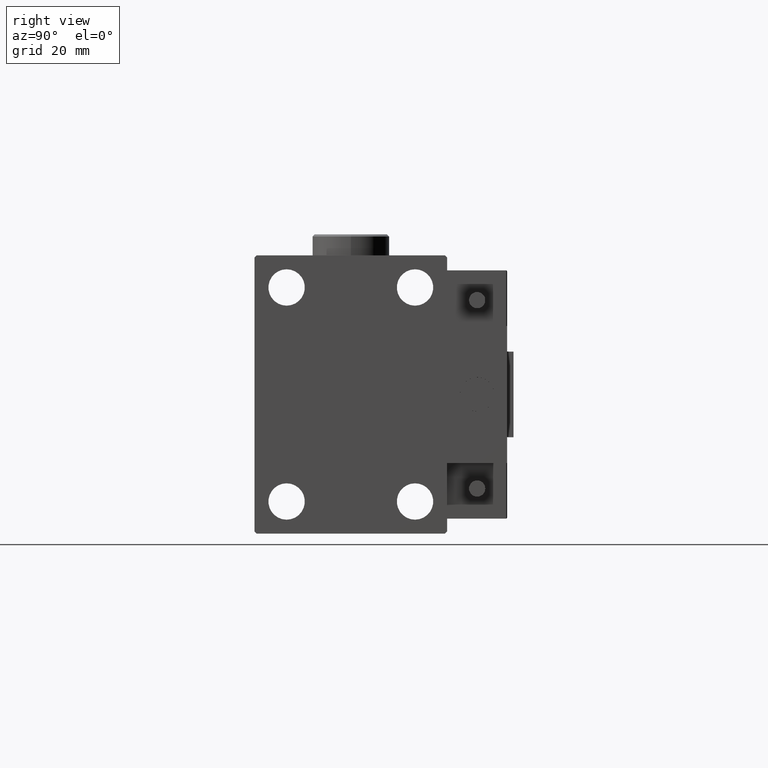
[diagram: clean part render]
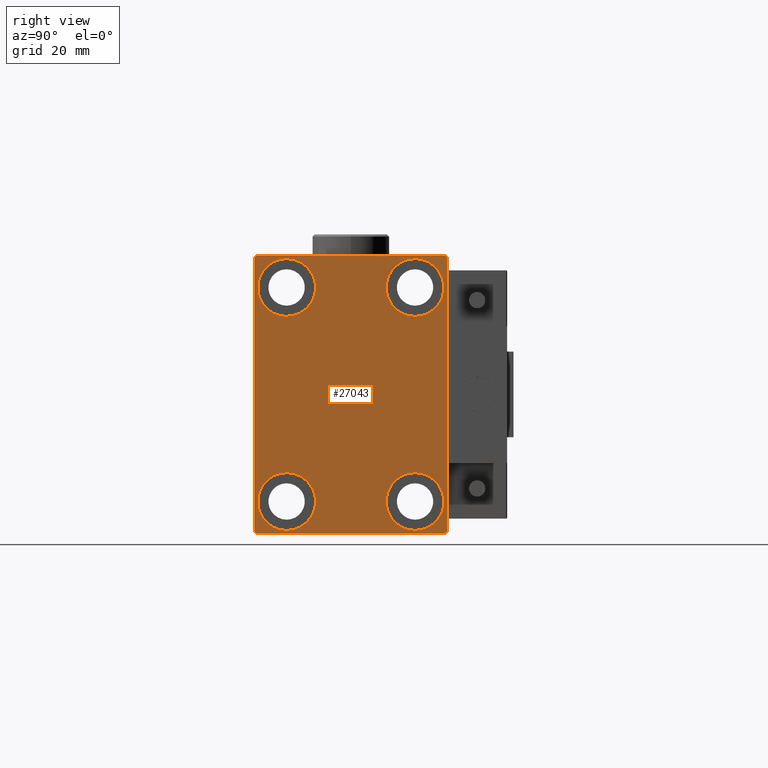
[diagram: same view with one face highlighted and labeled with its STEP entity id]
A machine part, right view. The second image highlights one B-rep face of the part: STEP entity #27043.
In plain terms, the highlighted planar face has unit normal (1, 0, 0).
Its self-contained STEP definition (entity closure, byte-faithful):
#483 = EDGE_CURVE ( 'NONE', #17148, #46121, #27970, .T. ) ;
#508 = DIRECTION ( 'NONE',  ( 0.000000000000000000, 0.000000000000000000, 1.000000000000000000 ) ) ;
#632 = DIRECTION ( 'NONE',  ( 0.000000000000000000, 0.000000000000000000, 1.000000000000000000 ) ) ;
#1006 = EDGE_CURVE ( 'NONE', #1190, #26991, #35159, .T. ) ;
#1021 = CARTESIAN_POINT ( 'NONE',  ( 70.00000000000000000, 22.49999999999999289, 31.99999999999999289 ) ) ;
#1190 = VERTEX_POINT ( 'NONE', #18166 ) ;
#1398 = DIRECTION ( 'NONE',  ( -1.000000000000000000, -0.000000000000000000, -0.000000000000000000 ) ) ;
#2319 = VECTOR ( 'NONE', #29172, 1000.000000000000000 ) ;
#2994 = CARTESIAN_POINT ( 'NONE',  ( 70.00000000000000000, -22.50000000000000711, -32.00000000000000711 ) ) ;
#2997 = AXIS2_PLACEMENT_3D ( 'NONE', #5308, #1398, #48322 ) ;
#3330 = EDGE_CURVE ( 'NONE', #29030, #23129, #13100, .T. ) ;
#3571 = EDGE_CURVE ( 'NONE', #50985, #24622, #32628, .T. ) ;
#4364 = ORIENTED_EDGE ( 'NONE', *, *, #32429, .T. ) ;
#4567 = LINE ( 'NONE', #8982, #32850 ) ;
#4830 = DIRECTION ( 'NONE',  ( -0.000000000000000000, 0.7071067811865376918, 0.7071067811865573427 ) ) ;
#4844 = EDGE_CURVE ( 'NONE', #20922, #1190, #17184, .T. ) ;
#5272 = DIRECTION ( 'NONE',  ( 0.000000000000000000, 1.000000000000000000, 0.000000000000000000 ) ) ;
#5308 = CARTESIAN_POINT ( 'NONE',  ( 70.00000000000000000, 15.00000000000000355, 25.00000000000000000 ) ) ;
#6096 = DIRECTION ( 'NONE',  ( -1.000000000000000000, -0.000000000000000000, -0.000000000000000000 ) ) ;
#6140 = VERTEX_POINT ( 'NONE', #33378 ) ;
#6747 = VERTEX_POINT ( 'NONE', #30849 ) ;
#6918 = CARTESIAN_POINT ( 'NONE',  ( 70.00000000000000000, 22.00000000000001421, -32.50000000000000711 ) ) ;
#7990 = CARTESIAN_POINT ( 'NONE',  ( 70.00000000000000000, -15.00000000000000355, -18.25000000000000355 ) ) ;
#8084 = PLANE ( 'NONE',  #21276 ) ;
#8982 = CARTESIAN_POINT ( 'NONE',  ( 70.00000000000000000, 27.25000000000032685, -27.24999999999957012 ) ) ;
#9323 = ORIENTED_EDGE ( 'NONE', *, *, #48474, .T. ) ;
#9497 = ORIENTED_EDGE ( 'NONE', *, *, #31169, .T. ) ;
#11216 = FACE_BOUND ( 'NONE', #45356, .T. ) ;
#11710 = DIRECTION ( 'NONE',  ( 0.000000000000000000, 0.000000000000000000, -1.000000000000000000 ) ) ;
#12244 = FACE_OUTER_BOUND ( 'NONE', #15050, .T. ) ;
#12576 = DIRECTION ( 'NONE',  ( 0.000000000000000000, -1.067522139062650425E-16, 1.000000000000000000 ) ) ;
#12699 = ORIENTED_EDGE ( 'NONE', *, *, #46190, .T. ) ;
#13100 = CIRCLE ( 'NONE', #32252, 6.749999999999999112 ) ;
#13746 = ORIENTED_EDGE ( 'NONE', *, *, #24718, .T. ) ;
#14526 = CARTESIAN_POINT ( 'NONE',  ( 70.00000000000000000, -22.00000000000002132, -32.50000000000000711 ) ) ;
#14775 = ORIENTED_EDGE ( 'NONE', *, *, #40215, .T. ) ;
#15050 = EDGE_LOOP ( 'NONE', ( #51274, #30069, #9323, #4364, #30209, #13746, #15087, #28827 ) ) ;
#15087 = ORIENTED_EDGE ( 'NONE', *, *, #35472, .T. ) ;
#15368 = DIRECTION ( 'NONE',  ( 0.000000000000000000, 0.000000000000000000, -1.000000000000000000 ) ) ;
#15583 = DIRECTION ( 'NONE',  ( -1.000000000000000000, -0.000000000000000000, -0.000000000000000000 ) ) ;
#16248 = VECTOR ( 'NONE', #11710, 1000.000000000000000 ) ;
#17014 = VERTEX_POINT ( 'NONE', #23874 ) ;
#17125 = ORIENTED_EDGE ( 'NONE', *, *, #43408, .T. ) ;
#17148 = VERTEX_POINT ( 'NONE', #24659 ) ;
#17184 = LINE ( 'NONE', #45338, #2319 ) ;
#17367 = LINE ( 'NONE', #20758, #39639 ) ;
#17751 = CIRCLE ( 'NONE', #36058, 6.749999999999999112 ) ;
#18133 = CARTESIAN_POINT ( 'NONE',  ( 70.00000000000000000, 22.50000000000000000, -32.00000000000002132 ) ) ;
#18166 = CARTESIAN_POINT ( 'NONE',  ( 70.00000000000000000, -21.99999999999999289, 32.49999999999999289 ) ) ;
#18292 = ORIENTED_EDGE ( 'NONE', *, *, #24916, .T. ) ;
#20229 = EDGE_LOOP ( 'NONE', ( #12699, #34589 ) ) ;
#20272 = CARTESIAN_POINT ( 'NONE',  ( 70.00000000000000000, 15.00000000000000355, 25.00000000000000000 ) ) ;
#20758 = CARTESIAN_POINT ( 'NONE',  ( 70.00000000000000000, -27.25000000000032330, -27.24999999999957012 ) ) ;
#20922 = VERTEX_POINT ( 'NONE', #37256 ) ;
#21276 = AXIS2_PLACEMENT_3D ( 'NONE', #43783, #32303, #15368 ) ;
#21964 = DIRECTION ( 'NONE',  ( 0.000000000000000000, 0.000000000000000000, 1.000000000000000000 ) ) ;
#22003 = EDGE_CURVE ( 'NONE', #43883, #17014, #42746, .T. ) ;
#22495 = VERTEX_POINT ( 'NONE', #2994 ) ;
#22570 = VECTOR ( 'NONE', #12576, 1000.000000000000000 ) ;
#22820 = DIRECTION ( 'NONE',  ( -1.000000000000000000, -0.000000000000000000, -0.000000000000000000 ) ) ;
#23129 = VERTEX_POINT ( 'NONE', #7990 ) ;
#23406 = CARTESIAN_POINT ( 'NONE',  ( 70.00000000000000000, -27.25000000000000000, 27.25000000000000000 ) ) ;
#23777 = AXIS2_PLACEMENT_3D ( 'NONE', #27718, #31371, #632 ) ;
#23874 = CARTESIAN_POINT ( 'NONE',  ( 70.00000000000000000, 15.00000000000000355, 18.25000000000000355 ) ) ;
#24312 = CARTESIAN_POINT ( 'NONE',  ( 70.00000000000000000, 14.99999999999999645, -31.75000000000000000 ) ) ;
#24622 = VERTEX_POINT ( 'NONE', #6918 ) ;
#24659 = CARTESIAN_POINT ( 'NONE',  ( 70.00000000000000000, 14.99999999999999645, -18.25000000000000355 ) ) ;
#24718 = EDGE_CURVE ( 'NONE', #24622, #51438, #4567, .T. ) ;
#24916 = EDGE_CURVE ( 'NONE', #6140, #6747, #33704, .T. ) ;
#24975 = DIRECTION ( 'NONE',  ( -1.000000000000000000, -0.000000000000000000, -0.000000000000000000 ) ) ;
#25481 = AXIS2_PLACEMENT_3D ( 'NONE', #47852, #48115, #51515 ) ;
#26018 = EDGE_CURVE ( 'NONE', #50026, #20922, #44057, .T. ) ;
#26991 = VERTEX_POINT ( 'NONE', #45908 ) ;
#27043 = ADVANCED_FACE ( 'NONE', ( #46941, #11216, #27101, #43021, #12244 ), #8084, .T. ) ;
#27101 = FACE_BOUND ( 'NONE', #20229, .T. ) ;
#27595 = LINE ( 'NONE', #27849, #16248 ) ;
#27718 = CARTESIAN_POINT ( 'NONE',  ( 70.00000000000000000, -15.00000000000000355, -25.00000000000000000 ) ) ;
#27849 = CARTESIAN_POINT ( 'NONE',  ( 70.00000000000000000, -22.50000000000000711, 32.49999999999999289 ) ) ;
#27970 = CIRCLE ( 'NONE', #25481, 6.749999999999999112 ) ;
#28827 = ORIENTED_EDGE ( 'NONE', *, *, #26018, .T. ) ;
#29030 = VERTEX_POINT ( 'NONE', #34754 ) ;
#29172 = DIRECTION ( 'NONE',  ( 0.000000000000000000, -1.000000000000000000, -1.541976423090495387E-16 ) ) ;
#29712 = EDGE_LOOP ( 'NONE', ( #14775, #49510 ) ) ;
#30069 = ORIENTED_EDGE ( 'NONE', *, *, #1006, .T. ) ;
#30209 = ORIENTED_EDGE ( 'NONE', *, *, #3571, .T. ) ;
#30849 = CARTESIAN_POINT ( 'NONE',  ( 70.00000000000000000, -14.99999999999999645, 18.25000000000000355 ) ) ;
#31075 = AXIS2_PLACEMENT_3D ( 'NONE', #20272, #15583, #36175 ) ;
#31169 = EDGE_CURVE ( 'NONE', #23129, #29030, #37118, .T. ) ;
#31371 = DIRECTION ( 'NONE',  ( -1.000000000000000000, -0.000000000000000000, -0.000000000000000000 ) ) ;
#32050 = CARTESIAN_POINT ( 'NONE',  ( 70.00000000000000000, 27.25000000000014921, 27.24999999999976907 ) ) ;
#32252 = AXIS2_PLACEMENT_3D ( 'NONE', #38373, #6096, #21964 ) ;
#32303 = DIRECTION ( 'NONE',  ( 1.000000000000000000, 0.000000000000000000, 0.000000000000000000 ) ) ;
#32429 = EDGE_CURVE ( 'NONE', #22495, #50985, #17367, .T. ) ;
#32628 = LINE ( 'NONE', #44362, #34742 ) ;
#32850 = VECTOR ( 'NONE', #4830, 1000.000000000000114 ) ;
#33062 = CARTESIAN_POINT ( 'NONE',  ( 70.00000000000000000, -14.99999999999999645, 25.00000000000000000 ) ) ;
#33378 = CARTESIAN_POINT ( 'NONE',  ( 70.00000000000000000, -14.99999999999999645, 31.75000000000000000 ) ) ;
#33704 = CIRCLE ( 'NONE', #41181, 6.749999999999999112 ) ;
#34589 = ORIENTED_EDGE ( 'NONE', *, *, #22003, .T. ) ;
#34675 = VECTOR ( 'NONE', #42723, 1000.000000000000114 ) ;
#34742 = VECTOR ( 'NONE', #5272, 1000.000000000000000 ) ;
#34754 = CARTESIAN_POINT ( 'NONE',  ( 70.00000000000000000, -15.00000000000000355, -31.75000000000000000 ) ) ;
#35159 = LINE ( 'NONE', #23406, #34675 ) ;
#35472 = EDGE_CURVE ( 'NONE', #51438, #50026, #50737, .T. ) ;
#36058 = AXIS2_PLACEMENT_3D ( 'NONE', #51003, #22820, #38729 ) ;
#36175 = DIRECTION ( 'NONE',  ( 0.000000000000000000, 0.000000000000000000, 1.000000000000000000 ) ) ;
#36661 = DIRECTION ( 'NONE',  ( -0.000000000000000000, 0.7071067811865378028, -0.7071067811865573427 ) ) ;
#37110 = DIRECTION ( 'NONE',  ( 0.000000000000000000, 0.000000000000000000, 1.000000000000000000 ) ) ;
#37118 = CIRCLE ( 'NONE', #23777, 6.749999999999999112 ) ;
#37256 = CARTESIAN_POINT ( 'NONE',  ( 70.00000000000000000, 21.99999999999999289, 32.50000000000000000 ) ) ;
#37609 = DIRECTION ( 'NONE',  ( -1.000000000000000000, -0.000000000000000000, -0.000000000000000000 ) ) ;
#37938 = CIRCLE ( 'NONE', #2997, 6.749999999999999112 ) ;
#38373 = CARTESIAN_POINT ( 'NONE',  ( 70.00000000000000000, -15.00000000000000355, -25.00000000000000000 ) ) ;
#38729 = DIRECTION ( 'NONE',  ( 0.000000000000000000, 0.000000000000000000, 1.000000000000000000 ) ) ;
#39639 = VECTOR ( 'NONE', #36661, 1000.000000000000000 ) ;
#40215 = EDGE_CURVE ( 'NONE', #46121, #17148, #17751, .T. ) ;
#41181 = AXIS2_PLACEMENT_3D ( 'NONE', #41791, #37609, #37110 ) ;
#41791 = CARTESIAN_POINT ( 'NONE',  ( 70.00000000000000000, -14.99999999999999645, 25.00000000000000000 ) ) ;
#42063 = VECTOR ( 'NONE', #48486, 999.9999999999998863 ) ;
#42723 = DIRECTION ( 'NONE',  ( 0.000000000000000000, -0.7071067811865474617, -0.7071067811865474617 ) ) ;
#42746 = CIRCLE ( 'NONE', #31075, 6.749999999999999112 ) ;
#43021 = FACE_BOUND ( 'NONE', #50109, .T. ) ;
#43408 = EDGE_CURVE ( 'NONE', #6747, #6140, #48687, .T. ) ;
#43783 = CARTESIAN_POINT ( 'NONE',  ( 70.00000000000000000, 0.000000000000000000, 0.000000000000000000 ) ) ;
#43883 = VERTEX_POINT ( 'NONE', #51421 ) ;
#44057 = LINE ( 'NONE', #32050, #42063 ) ;
#44362 = CARTESIAN_POINT ( 'NONE',  ( 70.00000000000000000, -22.50000000000000711, -32.50000000000000711 ) ) ;
#45334 = AXIS2_PLACEMENT_3D ( 'NONE', #33062, #24975, #508 ) ;
#45338 = CARTESIAN_POINT ( 'NONE',  ( 70.00000000000000000, 22.49999999999999289, 32.50000000000000000 ) ) ;
#45356 = EDGE_LOOP ( 'NONE', ( #17125, #18292 ) ) ;
#45908 = CARTESIAN_POINT ( 'NONE',  ( 70.00000000000000000, -22.50000000000000711, 31.99999999999999289 ) ) ;
#46121 = VERTEX_POINT ( 'NONE', #24312 ) ;
#46190 = EDGE_CURVE ( 'NONE', #17014, #43883, #37938, .T. ) ;
#46941 = FACE_BOUND ( 'NONE', #29712, .T. ) ;
#47588 = CARTESIAN_POINT ( 'NONE',  ( 70.00000000000000000, 22.50000000000000000, -32.50000000000000711 ) ) ;
#47852 = CARTESIAN_POINT ( 'NONE',  ( 70.00000000000000000, 14.99999999999999645, -25.00000000000000000 ) ) ;
#47989 = ORIENTED_EDGE ( 'NONE', *, *, #3330, .T. ) ;
#48115 = DIRECTION ( 'NONE',  ( -1.000000000000000000, -0.000000000000000000, -0.000000000000000000 ) ) ;
#48322 = DIRECTION ( 'NONE',  ( 0.000000000000000000, 0.000000000000000000, 1.000000000000000000 ) ) ;
#48474 = EDGE_CURVE ( 'NONE', #26991, #22495, #27595, .T. ) ;
#48486 = DIRECTION ( 'NONE',  ( -0.000000000000000000, -0.7071067811865425767, 0.7071067811865525687 ) ) ;
#48687 = CIRCLE ( 'NONE', #45334, 6.749999999999999112 ) ;
#49510 = ORIENTED_EDGE ( 'NONE', *, *, #483, .T. ) ;
#50026 = VERTEX_POINT ( 'NONE', #1021 ) ;
#50109 = EDGE_LOOP ( 'NONE', ( #47989, #9497 ) ) ;
#50737 = LINE ( 'NONE', #47588, #22570 ) ;
#50985 = VERTEX_POINT ( 'NONE', #14526 ) ;
#51003 = CARTESIAN_POINT ( 'NONE',  ( 70.00000000000000000, 14.99999999999999645, -25.00000000000000000 ) ) ;
#51274 = ORIENTED_EDGE ( 'NONE', *, *, #4844, .T. ) ;
#51421 = CARTESIAN_POINT ( 'NONE',  ( 70.00000000000000000, 15.00000000000000355, 31.75000000000000000 ) ) ;
#51438 = VERTEX_POINT ( 'NONE', #18133 ) ;
#51515 = DIRECTION ( 'NONE',  ( 0.000000000000000000, 0.000000000000000000, 1.000000000000000000 ) ) ;